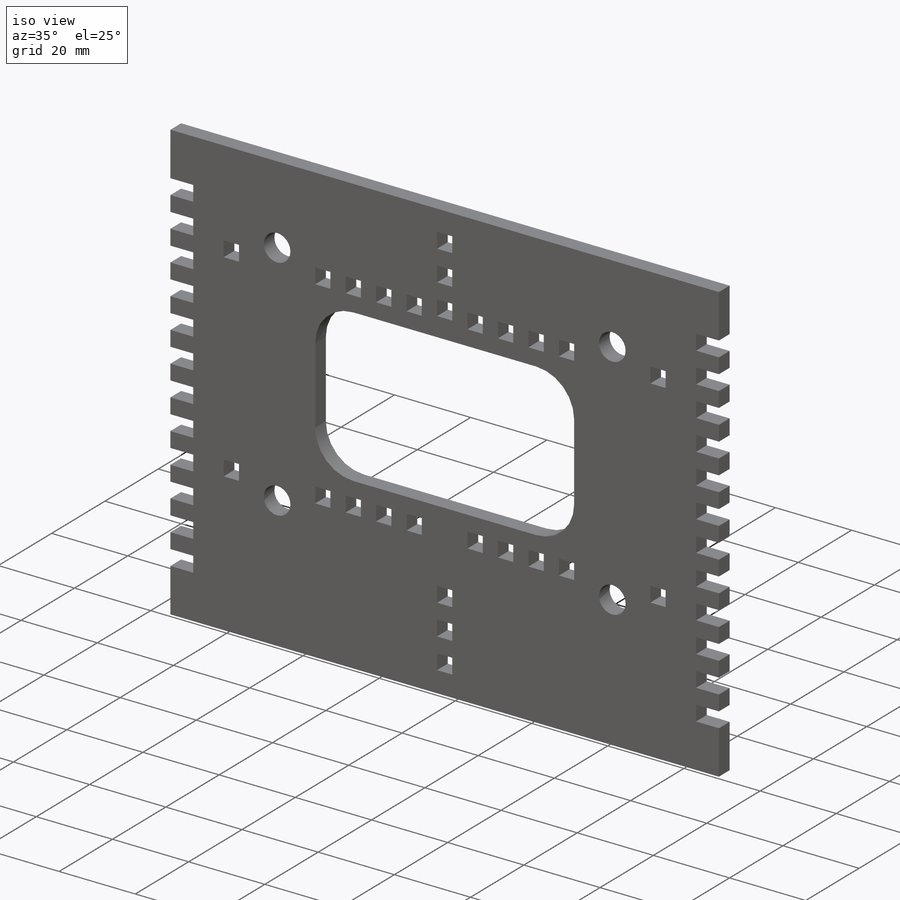
[diagram: iso view]
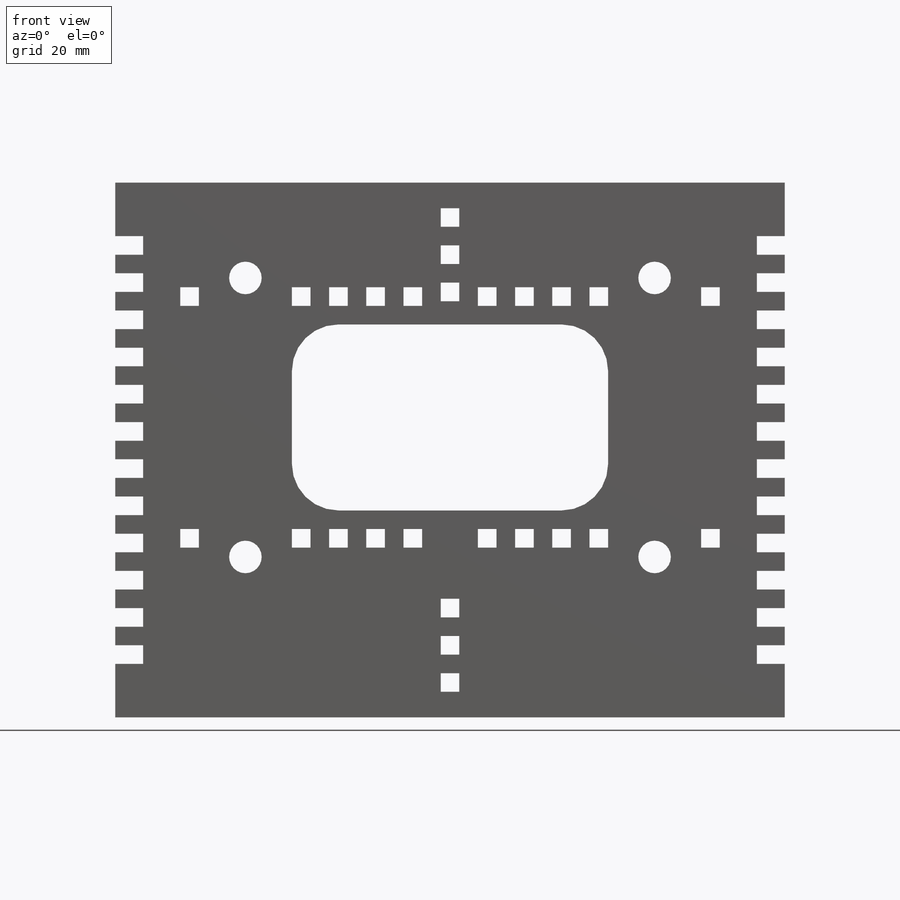
[diagram: front view]
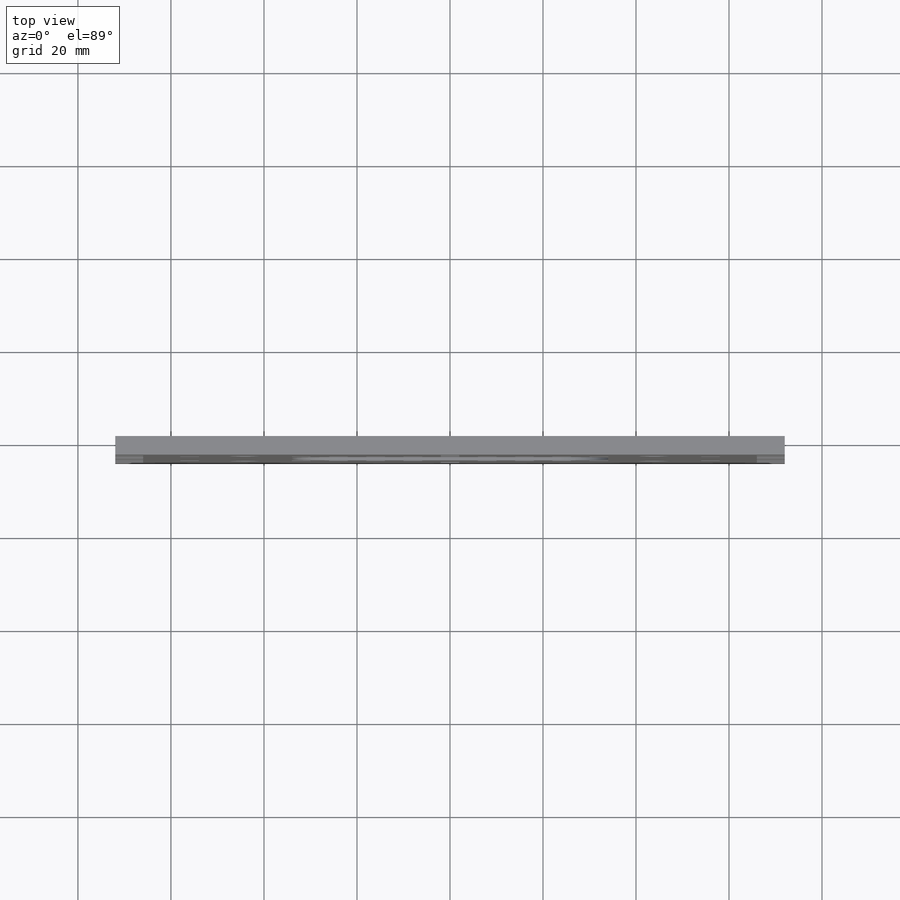
[diagram: top view]
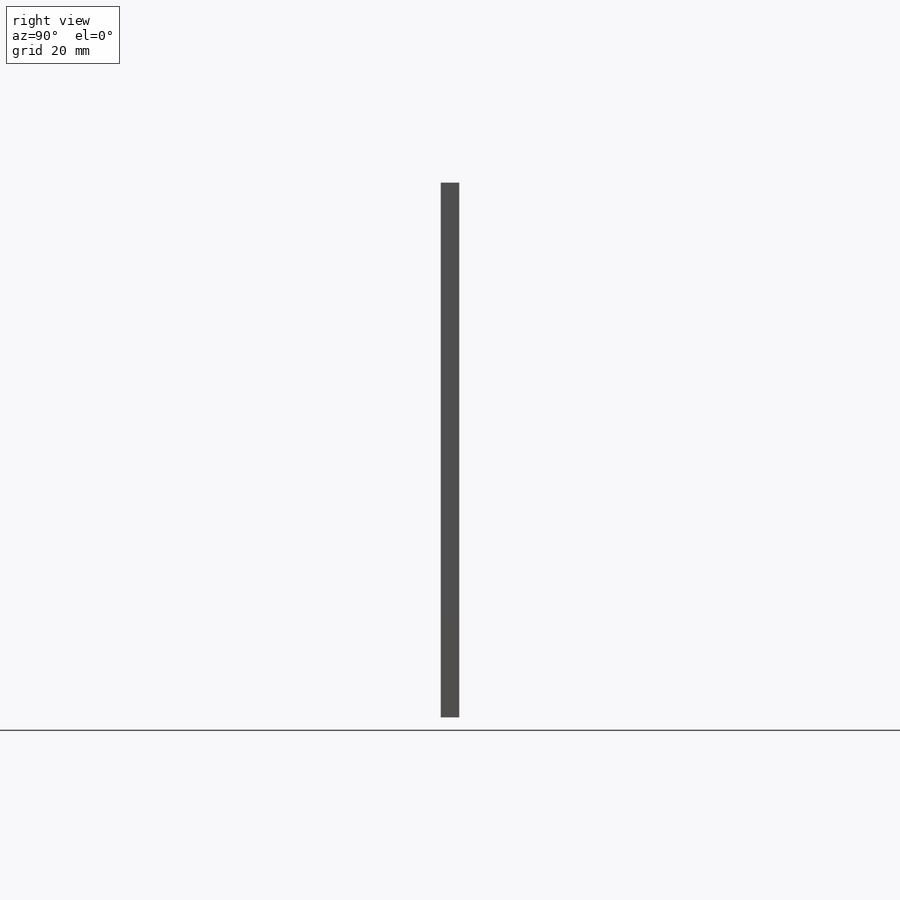
[diagram: right view]
SOLIDWORKS PART (.sldprt)
format: sldprt  version: not decoded by parser v0  size: 585,216 bytes
history: native  units: mm
features: sketch x3, cut_extrude x2, material x1, extrude x1 (+13 scaffold rows collapsed)
feature tree (20):
  scaffold x13  (default folders/planes/origin — collapsed)
  material  "Cedar"
  sketch  "Sketch1"  dims[c1.D3=7.0mm c1.D8=10.0mm c1.D10=10.0mm c1.D16=7.0mm c1.D1=60.0mm c1.D2=50.0mm c1.D4=44.0mm c1.D5=30.0mm c2.D1=27.5mm c2.D2=28.0mm c2.D6=10.0mm c2.D7=10.0mm c2.D9=50.5mm c2.D10=60.0mm c3.D1=20.5mm c3.D5=34.0mm c3.D6=30.0mm c3.D7=20.0mm c3.D8=20.0mm c3.D11=5.5mm c3.D12=4.0mm c3.D13=4.0mm c3.D14=2.0mm c3.D16=44.0mm c4.D6=34.0mm c4.D9=30.0mm c4.D15=3.0]
  extrude  "Boss-Extrude1"  Depth=4mm
  sketch  "Sketch2"  dims[c1.D1=2.0mm c1.D2=4.0mm c1.D3=4.0mm c1.D4=4.0mm c1.D5=6.0mm c1.D6=~89.269496mm c2.D1=2.0mm c2.D2=6.0]
  cut_extrude  "Cut-Extrude1"  Depth=4mm
  sketch  "Sketch4"  dims[D1=4.0mm D2=4.0mm D3=4.0mm D4=6.0mm D6=4.0mm D7=4.0mm D8=4.0mm D9=6.0mm D5=7.0 D10=7.0]
  cut_extrude  "Cut-Extrude2"  Depth=10mm
decode coverage: 6 of 6 modeling features carry decoded parameters
note: ~ marks probable driven/reference dimensions
note: suppression state not decoded; provenance and decode notes live in map.json
